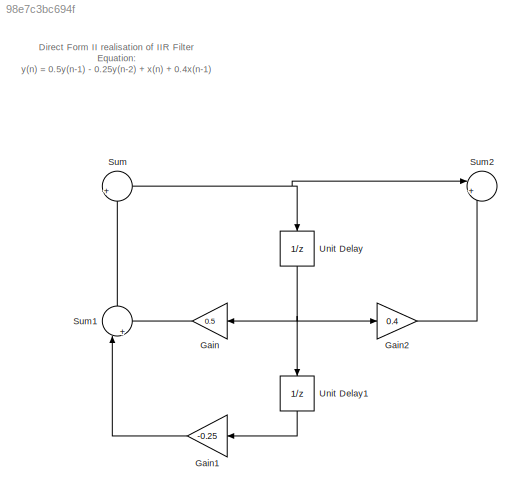
MODEL slx_98e7c3bc694f
KIND model
CONFIG AbsTol = auto
CONFIG EnableMultiTasking = off
CONFIG FixedStep = auto
CONFIG MaxStep = auto
CONFIG MinStep = auto
CONFIG RelTol = 1e-3
CONFIG SampleTimeConstraint = Unconstrained
CONFIG Solver = VariableStepAuto
CONFIG SolverName = VariableStepAuto
CONFIG StartTime = 0.0
CONFIG StopTime = 10.0
BLOCK [Gain] Gain
  Gain = 0.5
  NameLocation = top
BLOCK [Gain] Gain1
  Gain = -0.25
  NameLocation = top
BLOCK [Gain] Gain2
  Gain = 0.4
BLOCK [Sum] Sum
  Inputs = |++
  Ports = [2, 1]
BLOCK [Sum] Sum1
  Inputs = |++
  NameLocation = right
  Ports = [2, 1]
BLOCK [Sum] Sum2
  Inputs = |++
  Ports = [2, 1]
BLOCK [UnitDelay] Unit Delay
  HasFrameUpgradeWarning = on
  NameLocation = left
  SampleTime = -1
BLOCK [UnitDelay] Unit Delay1
  HasFrameUpgradeWarning = on
  NameLocation = left
  SampleTime = -1
ANNOTATION (root): Direct Form II realisation of IIR Filter Equation: y(n) = 0.5y(n-1) - 0.25y(n-2) + x(n) + 0.4x(n-1)
LINE Gain1:1 -> Sum1:1
LINE Gain2:1 -> Sum2:2
LINE Gain:1 -> Sum1:2
LINE Sum1:1 -> Sum:2
NET Sum:1 -> Sum2:1, Unit Delay:1
LINE Unit Delay1:1 -> Gain1:1
NET Unit Delay:1 -> Gain2:1, Gain:1, Unit Delay1:1
note: NET lines group one-source signal fan-out (src -> all destinations, sorted); 1:1 wires keep LINE
